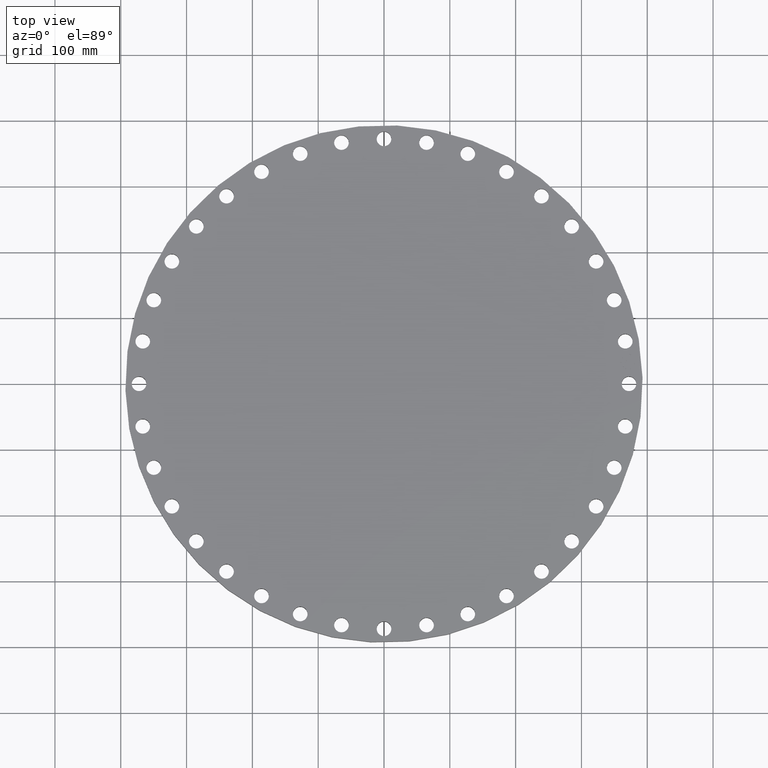
[diagram: clean part render]
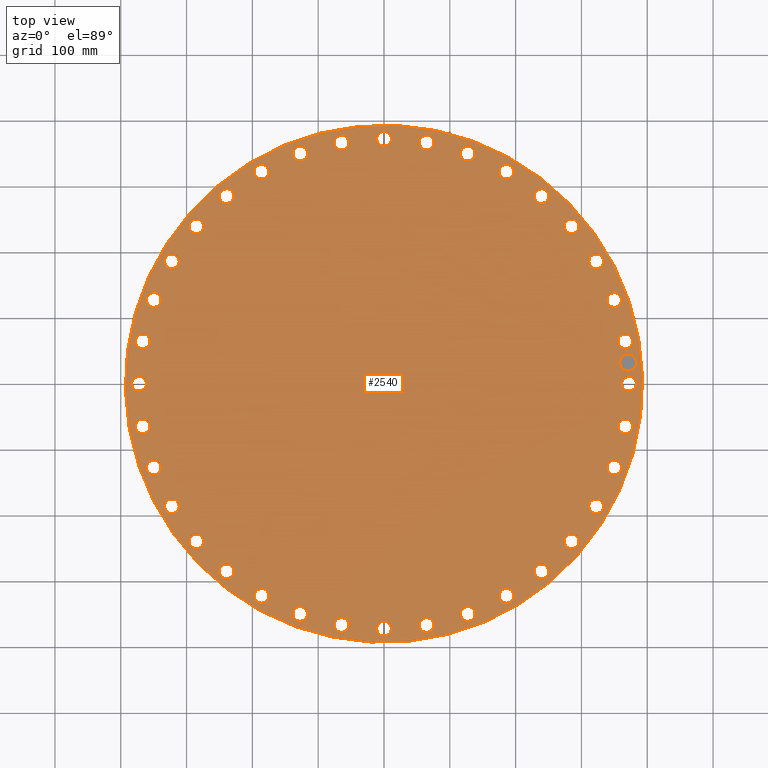
[diagram: same view with one face highlighted and labeled with its STEP entity id]
A machine part, top view. The second image highlights one B-rep face of the part: STEP entity #2540.
In plain terms, the highlighted planar face has unit normal (0, 0, -1).
Its self-contained STEP definition (entity closure, byte-faithful):
#65=AXIS2_PLACEMENT_3D('Circle Axis2P3D',#63,#64,$) ;
#82=AXIS2_PLACEMENT_3D('Circle Axis2P3D',#80,#81,$) ;
#115=AXIS2_PLACEMENT_3D('Circle Axis2P3D',#113,#114,$) ;
#139=AXIS2_PLACEMENT_3D('Circle Axis2P3D',#137,#138,$) ;
#885=AXIS2_PLACEMENT_3D('Circle Axis2P3D',#883,#884,$) ;
#897=AXIS2_PLACEMENT_3D('Circle Axis2P3D',#895,#896,$) ;
#928=AXIS2_PLACEMENT_3D('Circle Axis2P3D',#926,#927,$) ;
#940=AXIS2_PLACEMENT_3D('Circle Axis2P3D',#938,#939,$) ;
#971=AXIS2_PLACEMENT_3D('Circle Axis2P3D',#969,#970,$) ;
#983=AXIS2_PLACEMENT_3D('Circle Axis2P3D',#981,#982,$) ;
#1014=AXIS2_PLACEMENT_3D('Circle Axis2P3D',#1012,#1013,$) ;
#1026=AXIS2_PLACEMENT_3D('Circle Axis2P3D',#1024,#1025,$) ;
#1057=AXIS2_PLACEMENT_3D('Circle Axis2P3D',#1055,#1056,$) ;
#1069=AXIS2_PLACEMENT_3D('Circle Axis2P3D',#1067,#1068,$) ;
#1100=AXIS2_PLACEMENT_3D('Circle Axis2P3D',#1098,#1099,$) ;
#1112=AXIS2_PLACEMENT_3D('Circle Axis2P3D',#1110,#1111,$) ;
#1143=AXIS2_PLACEMENT_3D('Circle Axis2P3D',#1141,#1142,$) ;
#1155=AXIS2_PLACEMENT_3D('Circle Axis2P3D',#1153,#1154,$) ;
#1186=AXIS2_PLACEMENT_3D('Circle Axis2P3D',#1184,#1185,$) ;
#1198=AXIS2_PLACEMENT_3D('Circle Axis2P3D',#1196,#1197,$) ;
#1229=AXIS2_PLACEMENT_3D('Circle Axis2P3D',#1227,#1228,$) ;
#1241=AXIS2_PLACEMENT_3D('Circle Axis2P3D',#1239,#1240,$) ;
#1272=AXIS2_PLACEMENT_3D('Circle Axis2P3D',#1270,#1271,$) ;
#1284=AXIS2_PLACEMENT_3D('Circle Axis2P3D',#1282,#1283,$) ;
#1315=AXIS2_PLACEMENT_3D('Circle Axis2P3D',#1313,#1314,$) ;
#1327=AXIS2_PLACEMENT_3D('Circle Axis2P3D',#1325,#1326,$) ;
#1358=AXIS2_PLACEMENT_3D('Circle Axis2P3D',#1356,#1357,$) ;
#1370=AXIS2_PLACEMENT_3D('Circle Axis2P3D',#1368,#1369,$) ;
#1401=AXIS2_PLACEMENT_3D('Circle Axis2P3D',#1399,#1400,$) ;
#1413=AXIS2_PLACEMENT_3D('Circle Axis2P3D',#1411,#1412,$) ;
#1444=AXIS2_PLACEMENT_3D('Circle Axis2P3D',#1442,#1443,$) ;
#1456=AXIS2_PLACEMENT_3D('Circle Axis2P3D',#1454,#1455,$) ;
#1487=AXIS2_PLACEMENT_3D('Circle Axis2P3D',#1485,#1486,$) ;
#1499=AXIS2_PLACEMENT_3D('Circle Axis2P3D',#1497,#1498,$) ;
#1530=AXIS2_PLACEMENT_3D('Circle Axis2P3D',#1528,#1529,$) ;
#1542=AXIS2_PLACEMENT_3D('Circle Axis2P3D',#1540,#1541,$) ;
#1573=AXIS2_PLACEMENT_3D('Circle Axis2P3D',#1571,#1572,$) ;
#1585=AXIS2_PLACEMENT_3D('Circle Axis2P3D',#1583,#1584,$) ;
#1616=AXIS2_PLACEMENT_3D('Circle Axis2P3D',#1614,#1615,$) ;
#1628=AXIS2_PLACEMENT_3D('Circle Axis2P3D',#1626,#1627,$) ;
#1659=AXIS2_PLACEMENT_3D('Circle Axis2P3D',#1657,#1658,$) ;
#1671=AXIS2_PLACEMENT_3D('Circle Axis2P3D',#1669,#1670,$) ;
#1702=AXIS2_PLACEMENT_3D('Circle Axis2P3D',#1700,#1701,$) ;
#1714=AXIS2_PLACEMENT_3D('Circle Axis2P3D',#1712,#1713,$) ;
#1745=AXIS2_PLACEMENT_3D('Circle Axis2P3D',#1743,#1744,$) ;
#1757=AXIS2_PLACEMENT_3D('Circle Axis2P3D',#1755,#1756,$) ;
#1788=AXIS2_PLACEMENT_3D('Circle Axis2P3D',#1786,#1787,$) ;
#1800=AXIS2_PLACEMENT_3D('Circle Axis2P3D',#1798,#1799,$) ;
#1831=AXIS2_PLACEMENT_3D('Circle Axis2P3D',#1829,#1830,$) ;
#1843=AXIS2_PLACEMENT_3D('Circle Axis2P3D',#1841,#1842,$) ;
#1874=AXIS2_PLACEMENT_3D('Circle Axis2P3D',#1872,#1873,$) ;
#1886=AXIS2_PLACEMENT_3D('Circle Axis2P3D',#1884,#1885,$) ;
#1917=AXIS2_PLACEMENT_3D('Circle Axis2P3D',#1915,#1916,$) ;
#1929=AXIS2_PLACEMENT_3D('Circle Axis2P3D',#1927,#1928,$) ;
#1960=AXIS2_PLACEMENT_3D('Circle Axis2P3D',#1958,#1959,$) ;
#1972=AXIS2_PLACEMENT_3D('Circle Axis2P3D',#1970,#1971,$) ;
#2003=AXIS2_PLACEMENT_3D('Circle Axis2P3D',#2001,#2002,$) ;
#2015=AXIS2_PLACEMENT_3D('Circle Axis2P3D',#2013,#2014,$) ;
#2046=AXIS2_PLACEMENT_3D('Circle Axis2P3D',#2044,#2045,$) ;
#2058=AXIS2_PLACEMENT_3D('Circle Axis2P3D',#2056,#2057,$) ;
#2089=AXIS2_PLACEMENT_3D('Circle Axis2P3D',#2087,#2088,$) ;
#2101=AXIS2_PLACEMENT_3D('Circle Axis2P3D',#2099,#2100,$) ;
#2132=AXIS2_PLACEMENT_3D('Circle Axis2P3D',#2130,#2131,$) ;
#2144=AXIS2_PLACEMENT_3D('Circle Axis2P3D',#2142,#2143,$) ;
#2175=AXIS2_PLACEMENT_3D('Circle Axis2P3D',#2173,#2174,$) ;
#2187=AXIS2_PLACEMENT_3D('Circle Axis2P3D',#2185,#2186,$) ;
#2218=AXIS2_PLACEMENT_3D('Circle Axis2P3D',#2216,#2217,$) ;
#2230=AXIS2_PLACEMENT_3D('Circle Axis2P3D',#2228,#2229,$) ;
#2261=AXIS2_PLACEMENT_3D('Circle Axis2P3D',#2259,#2260,$) ;
#2273=AXIS2_PLACEMENT_3D('Circle Axis2P3D',#2271,#2272,$) ;
#2304=AXIS2_PLACEMENT_3D('Circle Axis2P3D',#2302,#2303,$) ;
#2316=AXIS2_PLACEMENT_3D('Circle Axis2P3D',#2314,#2315,$) ;
#2347=AXIS2_PLACEMENT_3D('Circle Axis2P3D',#2345,#2346,$) ;
#2359=AXIS2_PLACEMENT_3D('Circle Axis2P3D',#2357,#2358,$) ;
#2372=AXIS2_PLACEMENT_3D('Plane Axis2P3D',#2369,#2370,#2371) ;
#2524=AXIS2_PLACEMENT_3D('Circle Axis2P3D',#2522,#2523,$) ;
#2533=AXIS2_PLACEMENT_3D('Circle Axis2P3D',#2531,#2532,$) ;
#46=CARTESIAN_POINT('Vertex',(14.2688636728,0.210947236987,1.69000000001)) ;
#60=CARTESIAN_POINT('Vertex',(15.0411363273,-0.210947236987,1.69000000001)) ;
#63=CARTESIAN_POINT('Axis2P3D Location',(14.6550000001,0.,1.69000000001)) ;
#80=CARTESIAN_POINT('Axis2P3D Location',(14.6550000001,0.,1.69000000001)) ;
#110=CARTESIAN_POINT('Vertex',(-7.41671308224,-13.5762022325,1.69000000001)) ;
#113=CARTESIAN_POINT('Axis2P3D Location',(0.,0.,1.69000000001)) ;
#117=CARTESIAN_POINT('Vertex',(7.41671308224,13.5762022325,1.69000000001)) ;
#137=CARTESIAN_POINT('Axis2P3D Location',(0.,0.,1.69000000001)) ;
#873=CARTESIAN_POINT('Vertex',(-14.088718175,2.2700196997,1.69000000001)) ;
#880=CARTESIAN_POINT('Vertex',(-14.7759970659,2.81960838774,1.69000000001)) ;
#883=CARTESIAN_POINT('Axis2P3D Location',(-14.4323576205,2.54481404372,1.69000000001)) ;
#895=CARTESIAN_POINT('Axis2P3D Location',(-14.4323576205,2.54481404372,1.69000000001)) ;
#916=CARTESIAN_POINT('Vertex',(13.4804941046,-4.6820132365,1.69000000001)) ;
#923=CARTESIAN_POINT('Vertex',(14.0618966108,-5.34259716441,1.69000000001)) ;
#926=CARTESIAN_POINT('Axis2P3D Location',(13.7711953577,-5.01230520046,1.69000000001)) ;
#938=CARTESIAN_POINT('Axis2P3D Location',(13.7711953577,-5.01230520046,1.69000000001)) ;
#959=CARTESIAN_POINT('Vertex',(-13.4804941046,4.6820132365,1.69000000001)) ;
#966=CARTESIAN_POINT('Vertex',(-14.0618966108,5.34259716441,1.69000000001)) ;
#969=CARTESIAN_POINT('Axis2P3D Location',(-13.7711953577,5.01230520046,1.69000000001)) ;
#981=CARTESIAN_POINT('Axis2P3D Location',(-13.7711953577,5.01230520046,1.69000000001)) ;
#1002=CARTESIAN_POINT('Vertex',(12.4626720423,-6.95174617032,1.69000000001)) ;
#1009=CARTESIAN_POINT('Vertex',(12.9205325427,-7.70325382973,1.69000000001)) ;
#1012=CARTESIAN_POINT('Axis2P3D Location',(12.6916022925,-7.32750000003,1.69000000001)) ;
#1024=CARTESIAN_POINT('Axis2P3D Location',(12.6916022925,-7.32750000003,1.69000000001)) ;
#1045=CARTESIAN_POINT('Vertex',(-12.4626720423,6.95174617032,1.69000000001)) ;
#1052=CARTESIAN_POINT('Vertex',(-12.9205325427,7.70325382973,1.69000000001)) ;
#1055=CARTESIAN_POINT('Axis2P3D Location',(-12.6916022925,7.32750000003,1.69000000001)) ;
#1067=CARTESIAN_POINT('Axis2P3D Location',(-12.6916022925,7.32750000003,1.69000000001)) ;
#1088=CARTESIAN_POINT('Vertex',(11.0661779964,-9.01025381451,1.69000000001)) ;
#1095=CARTESIAN_POINT('Vertex',(11.3865846315,-9.82985102547,1.69000000001)) ;
#1098=CARTESIAN_POINT('Axis2P3D Location',(11.226381314,-9.42005241999,1.69000000001)) ;
#1110=CARTESIAN_POINT('Axis2P3D Location',(11.226381314,-9.42005241999,1.69000000001)) ;
#1131=CARTESIAN_POINT('Vertex',(-11.0661779964,9.01025381451,1.69000000001)) ;
#1138=CARTESIAN_POINT('Vertex',(-11.3865846315,9.82985102547,1.69000000001)) ;
#1141=CARTESIAN_POINT('Axis2P3D Location',(-11.226381314,9.42005241999,1.69000000001)) ;
#1153=CARTESIAN_POINT('Axis2P3D Location',(-11.226381314,9.42005241999,1.69000000001)) ;
#1174=CARTESIAN_POINT('Vertex',(9.33344373188,-10.794989456,1.69000000001)) ;
#1181=CARTESIAN_POINT('Vertex',(9.5066611081,-11.6577731719,1.69000000001)) ;
#1184=CARTESIAN_POINT('Axis2P3D Location',(9.42005241999,-11.226381314,1.69000000001)) ;
#1196=CARTESIAN_POINT('Axis2P3D Location',(9.42005241999,-11.226381314,1.69000000001)) ;
#1217=CARTESIAN_POINT('Vertex',(-9.33344373188,10.794989456,1.69000000001)) ;
#1224=CARTESIAN_POINT('Vertex',(-9.5066611081,11.6577731719,1.69000000001)) ;
#1227=CARTESIAN_POINT('Axis2P3D Location',(-9.42005241999,11.226381314,1.69000000001)) ;
#1239=CARTESIAN_POINT('Axis2P3D Location',(-9.42005241999,11.226381314,1.69000000001)) ;
#1260=CARTESIAN_POINT('Vertex',(7.3171175025,-12.2517248053,1.69000000001)) ;
#1267=CARTESIAN_POINT('Vertex',(7.33788249756,-13.1314797797,1.69000000001)) ;
#1270=CARTESIAN_POINT('Axis2P3D Location',(7.32750000003,-12.6916022925,1.69000000001)) ;
#1282=CARTESIAN_POINT('Axis2P3D Location',(7.32750000003,-12.6916022925,1.69000000001)) ;
#1303=CARTESIAN_POINT('Vertex',(-7.3171175025,12.2517248053,1.69000000001)) ;
#1310=CARTESIAN_POINT('Vertex',(-7.33788249756,13.1314797797,1.69000000001)) ;
#1313=CARTESIAN_POINT('Axis2P3D Location',(-7.32750000003,12.6916022925,1.69000000001)) ;
#1325=CARTESIAN_POINT('Axis2P3D Location',(-7.32750000003,12.6916022925,1.69000000001)) ;
#1346=CARTESIAN_POINT('Vertex',(5.07846436045,-13.3361976961,1.69000000001)) ;
#1353=CARTESIAN_POINT('Vertex',(4.94614604047,-14.2061930192,1.69000000001)) ;
#1356=CARTESIAN_POINT('Axis2P3D Location',(5.01230520046,-13.7711953577,1.69000000001)) ;
#1368=CARTESIAN_POINT('Axis2P3D Location',(5.01230520046,-13.7711953577,1.69000000001)) ;
#1389=CARTESIAN_POINT('Vertex',(-5.07846436045,13.3361976961,1.69000000001)) ;
#1396=CARTESIAN_POINT('Vertex',(-4.94614604047,14.2061930192,1.69000000001)) ;
#1399=CARTESIAN_POINT('Axis2P3D Location',(-5.01230520046,13.7711953577,1.69000000001)) ;
#1411=CARTESIAN_POINT('Axis2P3D Location',(-5.01230520046,13.7711953577,1.69000000001)) ;
#1432=CARTESIAN_POINT('Vertex',(2.68550464862,-14.0154569684,1.69000000001)) ;
#1439=CARTESIAN_POINT('Vertex',(2.40412343881,-14.8492582725,1.69000000001)) ;
#1442=CARTESIAN_POINT('Axis2P3D Location',(2.54481404372,-14.4323576205,1.69000000001)) ;
#1454=CARTESIAN_POINT('Axis2P3D Location',(2.54481404372,-14.4323576205,1.69000000001)) ;
#1475=CARTESIAN_POINT('Vertex',(-2.68550464862,14.0154569684,1.69000000001)) ;
#1482=CARTESIAN_POINT('Vertex',(-2.40412343881,14.8492582725,1.69000000001)) ;
#1485=CARTESIAN_POINT('Axis2P3D Location',(-2.54481404372,14.4323576205,1.69000000001)) ;
#1497=CARTESIAN_POINT('Axis2P3D Location',(-2.54481404372,14.4323576205,1.69000000001)) ;
#1518=CARTESIAN_POINT('Vertex',(0.210947236987,-14.2688636728,1.69000000001)) ;
#1525=CARTESIAN_POINT('Vertex',(-0.210947236987,-15.0411363273,1.69000000001)) ;
#1528=CARTESIAN_POINT('Axis2P3D Location',(-1.34056993433E-015,-14.6550000001,1.69000000001)) ;
#1540=CARTESIAN_POINT('Axis2P3D Location',(-1.34056993433E-015,-14.6550000001,1.69000000001)) ;
#1561=CARTESIAN_POINT('Vertex',(-0.210947236987,14.2688636728,1.69000000001)) ;
#1568=CARTESIAN_POINT('Vertex',(0.210947236987,15.0411363273,1.69000000001)) ;
#1571=CARTESIAN_POINT('Axis2P3D Location',(-2.69207982624E-015,14.6550000001,1.69000000001)) ;
#1583=CARTESIAN_POINT('Axis2P3D Location',(-2.69207982624E-015,14.6550000001,1.69000000001)) ;
#1604=CARTESIAN_POINT('Vertex',(-2.2700196997,-14.088718175,1.69000000001)) ;
#1611=CARTESIAN_POINT('Vertex',(-2.81960838774,-14.7759970659,1.69000000001)) ;
#1614=CARTESIAN_POINT('Axis2P3D Location',(-2.54481404372,-14.4323576205,1.69000000001)) ;
#1626=CARTESIAN_POINT('Axis2P3D Location',(-2.54481404372,-14.4323576205,1.69000000001)) ;
#1647=CARTESIAN_POINT('Vertex',(2.2700196997,14.088718175,1.69000000001)) ;
#1654=CARTESIAN_POINT('Vertex',(2.81960838774,14.7759970659,1.69000000001)) ;
#1657=CARTESIAN_POINT('Axis2P3D Location',(2.54481404372,14.4323576205,1.69000000001)) ;
#1669=CARTESIAN_POINT('Axis2P3D Location',(2.54481404372,14.4323576205,1.69000000001)) ;
#1690=CARTESIAN_POINT('Vertex',(-4.6820132365,-13.4804941046,1.69000000001)) ;
#1697=CARTESIAN_POINT('Vertex',(-5.34259716441,-14.0618966108,1.69000000001)) ;
#1700=CARTESIAN_POINT('Axis2P3D Location',(-5.01230520046,-13.7711953577,1.69000000001)) ;
#1712=CARTESIAN_POINT('Axis2P3D Location',(-5.01230520046,-13.7711953577,1.69000000001)) ;
#1733=CARTESIAN_POINT('Vertex',(4.6820132365,13.4804941046,1.69000000001)) ;
#1740=CARTESIAN_POINT('Vertex',(5.34259716441,14.0618966108,1.69000000001)) ;
#1743=CARTESIAN_POINT('Axis2P3D Location',(5.01230520046,13.7711953577,1.69000000001)) ;
#1755=CARTESIAN_POINT('Axis2P3D Location',(5.01230520046,13.7711953577,1.69000000001)) ;
#1776=CARTESIAN_POINT('Vertex',(-6.95174617032,-12.4626720423,1.69000000001)) ;
#1783=CARTESIAN_POINT('Vertex',(-7.70325382973,-12.9205325427,1.69000000001)) ;
#1786=CARTESIAN_POINT('Axis2P3D Location',(-7.32750000003,-12.6916022925,1.69000000001)) ;
#1798=CARTESIAN_POINT('Axis2P3D Location',(-7.32750000003,-12.6916022925,1.69000000001)) ;
#1819=CARTESIAN_POINT('Vertex',(6.95174617032,12.4626720423,1.69000000001)) ;
#1826=CARTESIAN_POINT('Vertex',(7.70325382973,12.9205325427,1.69000000001)) ;
#1829=CARTESIAN_POINT('Axis2P3D Location',(7.32750000003,12.6916022925,1.69000000001)) ;
#1841=CARTESIAN_POINT('Axis2P3D Location',(7.32750000003,12.6916022925,1.69000000001)) ;
#1862=CARTESIAN_POINT('Vertex',(-9.01025381451,-11.0661779964,1.69000000001)) ;
#1869=CARTESIAN_POINT('Vertex',(-9.82985102547,-11.3865846315,1.69000000001)) ;
#1872=CARTESIAN_POINT('Axis2P3D Location',(-9.42005241999,-11.226381314,1.69000000001)) ;
#1884=CARTESIAN_POINT('Axis2P3D Location',(-9.42005241999,-11.226381314,1.69000000001)) ;
#1905=CARTESIAN_POINT('Vertex',(9.01025381451,11.0661779964,1.69000000001)) ;
#1912=CARTESIAN_POINT('Vertex',(9.82985102547,11.3865846315,1.69000000001)) ;
#1915=CARTESIAN_POINT('Axis2P3D Location',(9.42005241999,11.226381314,1.69000000001)) ;
#1927=CARTESIAN_POINT('Axis2P3D Location',(9.42005241999,11.226381314,1.69000000001)) ;
#1948=CARTESIAN_POINT('Vertex',(-10.794989456,-9.33344373188,1.69000000001)) ;
#1955=CARTESIAN_POINT('Vertex',(-11.6577731719,-9.5066611081,1.69000000001)) ;
#1958=CARTESIAN_POINT('Axis2P3D Location',(-11.226381314,-9.42005241999,1.69000000001)) ;
#1970=CARTESIAN_POINT('Axis2P3D Location',(-11.226381314,-9.42005241999,1.69000000001)) ;
#1991=CARTESIAN_POINT('Vertex',(10.794989456,9.33344373188,1.69000000001)) ;
#1998=CARTESIAN_POINT('Vertex',(11.6577731719,9.5066611081,1.69000000001)) ;
#2001=CARTESIAN_POINT('Axis2P3D Location',(11.226381314,9.42005241999,1.69000000001)) ;
#2013=CARTESIAN_POINT('Axis2P3D Location',(11.226381314,9.42005241999,1.69000000001)) ;
#2034=CARTESIAN_POINT('Vertex',(-12.2517248053,-7.3171175025,1.69000000001)) ;
#2041=CARTESIAN_POINT('Vertex',(-13.1314797797,-7.33788249756,1.69000000001)) ;
#2044=CARTESIAN_POINT('Axis2P3D Location',(-12.6916022925,-7.32750000003,1.69000000001)) ;
#2056=CARTESIAN_POINT('Axis2P3D Location',(-12.6916022925,-7.32750000003,1.69000000001)) ;
#2077=CARTESIAN_POINT('Vertex',(12.2517248053,7.3171175025,1.69000000001)) ;
#2084=CARTESIAN_POINT('Vertex',(13.1314797797,7.33788249756,1.69000000001)) ;
#2087=CARTESIAN_POINT('Axis2P3D Location',(12.6916022925,7.32750000003,1.69000000001)) ;
#2099=CARTESIAN_POINT('Axis2P3D Location',(12.6916022925,7.32750000003,1.69000000001)) ;
#2120=CARTESIAN_POINT('Vertex',(-13.3361976961,-5.07846436045,1.69000000001)) ;
#2127=CARTESIAN_POINT('Vertex',(-14.2061930192,-4.94614604047,1.69000000001)) ;
#2130=CARTESIAN_POINT('Axis2P3D Location',(-13.7711953577,-5.01230520046,1.69000000001)) ;
#2142=CARTESIAN_POINT('Axis2P3D Location',(-13.7711953577,-5.01230520046,1.69000000001)) ;
#2163=CARTESIAN_POINT('Vertex',(13.3361976961,5.07846436045,1.69000000001)) ;
#2170=CARTESIAN_POINT('Vertex',(14.2061930192,4.94614604047,1.69000000001)) ;
#2173=CARTESIAN_POINT('Axis2P3D Location',(13.7711953577,5.01230520046,1.69000000001)) ;
#2185=CARTESIAN_POINT('Axis2P3D Location',(13.7711953577,5.01230520046,1.69000000001)) ;
#2206=CARTESIAN_POINT('Vertex',(-14.0154569684,-2.68550464862,1.69000000001)) ;
#2213=CARTESIAN_POINT('Vertex',(-14.8492582725,-2.40412343881,1.69000000001)) ;
#2216=CARTESIAN_POINT('Axis2P3D Location',(-14.4323576205,-2.54481404372,1.69000000001)) ;
#2228=CARTESIAN_POINT('Axis2P3D Location',(-14.4323576205,-2.54481404372,1.69000000001)) ;
#2249=CARTESIAN_POINT('Vertex',(14.0154569684,2.68550464862,1.69000000001)) ;
#2256=CARTESIAN_POINT('Vertex',(14.8492582725,2.40412343881,1.69000000001)) ;
#2259=CARTESIAN_POINT('Axis2P3D Location',(14.4323576205,2.54481404372,1.69000000001)) ;
#2271=CARTESIAN_POINT('Axis2P3D Location',(14.4323576205,2.54481404372,1.69000000001)) ;
#2292=CARTESIAN_POINT('Vertex',(-14.2688636728,-0.210947236987,1.69000000001)) ;
#2299=CARTESIAN_POINT('Vertex',(-15.0411363273,0.210947236987,1.69000000001)) ;
#2302=CARTESIAN_POINT('Axis2P3D Location',(-14.6550000001,-1.79471988416E-015,1.69000000001)) ;
#2314=CARTESIAN_POINT('Axis2P3D Location',(-14.6550000001,-1.79471988416E-015,1.69000000001)) ;
#2335=CARTESIAN_POINT('Vertex',(14.088718175,-2.2700196997,1.69000000001)) ;
#2342=CARTESIAN_POINT('Vertex',(14.7759970659,-2.81960838774,1.69000000001)) ;
#2345=CARTESIAN_POINT('Axis2P3D Location',(14.4323576205,-2.54481404372,1.69000000001)) ;
#2357=CARTESIAN_POINT('Axis2P3D Location',(14.4323576205,-2.54481404372,1.69000000001)) ;
#2369=CARTESIAN_POINT('Axis2P3D Location',(0.,15.4700000001,1.69000000001)) ;
#2522=CARTESIAN_POINT('Axis2P3D Location',(14.5992333006,1.27726740997,1.69000000001)) ;
#2526=CARTESIAN_POINT('Vertex',(14.5556554292,1.77536475902,1.69000000001)) ;
#2528=CARTESIAN_POINT('Vertex',(14.642811172,0.779170060924,1.69000000001)) ;
#2531=CARTESIAN_POINT('Axis2P3D Location',(14.5992333006,1.27726740997,1.69000000001)) ;
#64=DIRECTION('Axis2P3D Direction',(0.,-0.,-0.0393700787402)) ;
#81=DIRECTION('Axis2P3D Direction',(0.,-0.,-0.0393700787402)) ;
#114=DIRECTION('Axis2P3D Direction',(0.,0.,-0.0393700787402)) ;
#138=DIRECTION('Axis2P3D Direction',(0.,0.,-0.0393700787402)) ;
#884=DIRECTION('Axis2P3D Direction',(0.,0.,-0.0393700787402)) ;
#896=DIRECTION('Axis2P3D Direction',(0.,0.,-0.0393700787402)) ;
#927=DIRECTION('Axis2P3D Direction',(0.,-0.,-0.0393700787402)) ;
#939=DIRECTION('Axis2P3D Direction',(0.,-0.,-0.0393700787402)) ;
#970=DIRECTION('Axis2P3D Direction',(0.,0.,-0.0393700787402)) ;
#982=DIRECTION('Axis2P3D Direction',(0.,0.,-0.0393700787402)) ;
#1013=DIRECTION('Axis2P3D Direction',(0.,-0.,-0.0393700787402)) ;
#1025=DIRECTION('Axis2P3D Direction',(0.,-0.,-0.0393700787402)) ;
#1056=DIRECTION('Axis2P3D Direction',(0.,0.,-0.0393700787402)) ;
#1068=DIRECTION('Axis2P3D Direction',(0.,0.,-0.0393700787402)) ;
#1099=DIRECTION('Axis2P3D Direction',(0.,-0.,-0.0393700787402)) ;
#1111=DIRECTION('Axis2P3D Direction',(0.,-0.,-0.0393700787402)) ;
#1142=DIRECTION('Axis2P3D Direction',(0.,0.,-0.0393700787402)) ;
#1154=DIRECTION('Axis2P3D Direction',(0.,0.,-0.0393700787402)) ;
#1185=DIRECTION('Axis2P3D Direction',(0.,-0.,-0.0393700787402)) ;
#1197=DIRECTION('Axis2P3D Direction',(0.,-0.,-0.0393700787402)) ;
#1228=DIRECTION('Axis2P3D Direction',(0.,0.,-0.0393700787402)) ;
#1240=DIRECTION('Axis2P3D Direction',(0.,0.,-0.0393700787402)) ;
#1271=DIRECTION('Axis2P3D Direction',(0.,-0.,-0.0393700787402)) ;
#1283=DIRECTION('Axis2P3D Direction',(0.,-0.,-0.0393700787402)) ;
#1314=DIRECTION('Axis2P3D Direction',(0.,0.,-0.0393700787402)) ;
#1326=DIRECTION('Axis2P3D Direction',(0.,0.,-0.0393700787402)) ;
#1357=DIRECTION('Axis2P3D Direction',(0.,-0.,-0.0393700787402)) ;
#1369=DIRECTION('Axis2P3D Direction',(0.,-0.,-0.0393700787402)) ;
#1400=DIRECTION('Axis2P3D Direction',(0.,0.,-0.0393700787402)) ;
#1412=DIRECTION('Axis2P3D Direction',(0.,0.,-0.0393700787402)) ;
#1443=DIRECTION('Axis2P3D Direction',(0.,-0.,-0.0393700787402)) ;
#1455=DIRECTION('Axis2P3D Direction',(0.,-0.,-0.0393700787402)) ;
#1486=DIRECTION('Axis2P3D Direction',(0.,0.,-0.0393700787402)) ;
#1498=DIRECTION('Axis2P3D Direction',(0.,0.,-0.0393700787402)) ;
#1529=DIRECTION('Axis2P3D Direction',(0.,-0.,-0.0393700787402)) ;
#1541=DIRECTION('Axis2P3D Direction',(0.,-0.,-0.0393700787402)) ;
#1572=DIRECTION('Axis2P3D Direction',(0.,0.,-0.0393700787402)) ;
#1584=DIRECTION('Axis2P3D Direction',(0.,0.,-0.0393700787402)) ;
#1615=DIRECTION('Axis2P3D Direction',(-0.,0.,-0.0393700787402)) ;
#1627=DIRECTION('Axis2P3D Direction',(-0.,0.,-0.0393700787402)) ;
#1658=DIRECTION('Axis2P3D Direction',(0.,0.,-0.0393700787402)) ;
#1670=DIRECTION('Axis2P3D Direction',(0.,0.,-0.0393700787402)) ;
#1701=DIRECTION('Axis2P3D Direction',(-0.,0.,-0.0393700787402)) ;
#1713=DIRECTION('Axis2P3D Direction',(-0.,0.,-0.0393700787402)) ;
#1744=DIRECTION('Axis2P3D Direction',(0.,0.,-0.0393700787402)) ;
#1756=DIRECTION('Axis2P3D Direction',(0.,0.,-0.0393700787402)) ;
#1787=DIRECTION('Axis2P3D Direction',(-0.,0.,-0.0393700787402)) ;
#1799=DIRECTION('Axis2P3D Direction',(-0.,0.,-0.0393700787402)) ;
#1830=DIRECTION('Axis2P3D Direction',(0.,0.,-0.0393700787402)) ;
#1842=DIRECTION('Axis2P3D Direction',(0.,0.,-0.0393700787402)) ;
#1873=DIRECTION('Axis2P3D Direction',(-0.,0.,-0.0393700787402)) ;
#1885=DIRECTION('Axis2P3D Direction',(-0.,0.,-0.0393700787402)) ;
#1916=DIRECTION('Axis2P3D Direction',(0.,0.,-0.0393700787402)) ;
#1928=DIRECTION('Axis2P3D Direction',(0.,0.,-0.0393700787402)) ;
#1959=DIRECTION('Axis2P3D Direction',(-0.,0.,-0.0393700787402)) ;
#1971=DIRECTION('Axis2P3D Direction',(-0.,0.,-0.0393700787402)) ;
#2002=DIRECTION('Axis2P3D Direction',(0.,0.,-0.0393700787402)) ;
#2014=DIRECTION('Axis2P3D Direction',(0.,0.,-0.0393700787402)) ;
#2045=DIRECTION('Axis2P3D Direction',(-0.,0.,-0.0393700787402)) ;
#2057=DIRECTION('Axis2P3D Direction',(-0.,0.,-0.0393700787402)) ;
#2088=DIRECTION('Axis2P3D Direction',(0.,0.,-0.0393700787402)) ;
#2100=DIRECTION('Axis2P3D Direction',(0.,0.,-0.0393700787402)) ;
#2131=DIRECTION('Axis2P3D Direction',(-0.,0.,-0.0393700787402)) ;
#2143=DIRECTION('Axis2P3D Direction',(-0.,0.,-0.0393700787402)) ;
#2174=DIRECTION('Axis2P3D Direction',(0.,0.,-0.0393700787402)) ;
#2186=DIRECTION('Axis2P3D Direction',(0.,0.,-0.0393700787402)) ;
#2217=DIRECTION('Axis2P3D Direction',(-0.,0.,-0.0393700787402)) ;
#2229=DIRECTION('Axis2P3D Direction',(-0.,0.,-0.0393700787402)) ;
#2260=DIRECTION('Axis2P3D Direction',(0.,0.,-0.0393700787402)) ;
#2272=DIRECTION('Axis2P3D Direction',(0.,0.,-0.0393700787402)) ;
#2303=DIRECTION('Axis2P3D Direction',(-0.,0.,-0.0393700787402)) ;
#2315=DIRECTION('Axis2P3D Direction',(-0.,0.,-0.0393700787402)) ;
#2346=DIRECTION('Axis2P3D Direction',(0.,-0.,-0.0393700787402)) ;
#2358=DIRECTION('Axis2P3D Direction',(0.,-0.,-0.0393700787402)) ;
#2370=DIRECTION('Axis2P3D Direction',(0.,0.,-0.0393700787402)) ;
#2371=DIRECTION('Axis2P3D XDirection',(0.0393700787402,0.,0.)) ;
#2523=DIRECTION('Axis2P3D Direction',(0.,0.,-0.0393700787402)) ;
#2532=DIRECTION('Axis2P3D Direction',(0.,0.,-0.0393700787402)) ;
#2375=ORIENTED_EDGE('',*,*,#141,.F.) ;
#2376=ORIENTED_EDGE('',*,*,#119,.F.) ;
#2379=ORIENTED_EDGE('',*,*,#67,.T.) ;
#2380=ORIENTED_EDGE('',*,*,#84,.T.) ;
#2383=ORIENTED_EDGE('',*,*,#2361,.T.) ;
#2384=ORIENTED_EDGE('',*,*,#2349,.T.) ;
#2387=ORIENTED_EDGE('',*,*,#942,.T.) ;
#2388=ORIENTED_EDGE('',*,*,#930,.T.) ;
#2391=ORIENTED_EDGE('',*,*,#1028,.T.) ;
#2392=ORIENTED_EDGE('',*,*,#1016,.T.) ;
#2395=ORIENTED_EDGE('',*,*,#1114,.T.) ;
#2396=ORIENTED_EDGE('',*,*,#1102,.T.) ;
#2399=ORIENTED_EDGE('',*,*,#1200,.T.) ;
#2400=ORIENTED_EDGE('',*,*,#1188,.T.) ;
#2403=ORIENTED_EDGE('',*,*,#1286,.T.) ;
#2404=ORIENTED_EDGE('',*,*,#1274,.T.) ;
#2407=ORIENTED_EDGE('',*,*,#1372,.T.) ;
#2408=ORIENTED_EDGE('',*,*,#1360,.T.) ;
#2411=ORIENTED_EDGE('',*,*,#1458,.T.) ;
#2412=ORIENTED_EDGE('',*,*,#1446,.T.) ;
#2415=ORIENTED_EDGE('',*,*,#1544,.T.) ;
#2416=ORIENTED_EDGE('',*,*,#1532,.T.) ;
#2419=ORIENTED_EDGE('',*,*,#1630,.T.) ;
#2420=ORIENTED_EDGE('',*,*,#1618,.T.) ;
#2423=ORIENTED_EDGE('',*,*,#1716,.T.) ;
#2424=ORIENTED_EDGE('',*,*,#1704,.T.) ;
#2427=ORIENTED_EDGE('',*,*,#1802,.T.) ;
#2428=ORIENTED_EDGE('',*,*,#1790,.T.) ;
#2431=ORIENTED_EDGE('',*,*,#1888,.T.) ;
#2432=ORIENTED_EDGE('',*,*,#1876,.T.) ;
#2435=ORIENTED_EDGE('',*,*,#1974,.T.) ;
#2436=ORIENTED_EDGE('',*,*,#1962,.T.) ;
#2439=ORIENTED_EDGE('',*,*,#2060,.T.) ;
#2440=ORIENTED_EDGE('',*,*,#2048,.T.) ;
#2443=ORIENTED_EDGE('',*,*,#2146,.T.) ;
#2444=ORIENTED_EDGE('',*,*,#2134,.T.) ;
#2447=ORIENTED_EDGE('',*,*,#2232,.T.) ;
#2448=ORIENTED_EDGE('',*,*,#2220,.T.) ;
#2451=ORIENTED_EDGE('',*,*,#2318,.T.) ;
#2452=ORIENTED_EDGE('',*,*,#2306,.T.) ;
#2455=ORIENTED_EDGE('',*,*,#899,.T.) ;
#2456=ORIENTED_EDGE('',*,*,#887,.T.) ;
#2459=ORIENTED_EDGE('',*,*,#985,.T.) ;
#2460=ORIENTED_EDGE('',*,*,#973,.T.) ;
#2463=ORIENTED_EDGE('',*,*,#1071,.T.) ;
#2464=ORIENTED_EDGE('',*,*,#1059,.T.) ;
#2467=ORIENTED_EDGE('',*,*,#1157,.T.) ;
#2468=ORIENTED_EDGE('',*,*,#1145,.T.) ;
#2471=ORIENTED_EDGE('',*,*,#1243,.T.) ;
#2472=ORIENTED_EDGE('',*,*,#1231,.T.) ;
#2475=ORIENTED_EDGE('',*,*,#1329,.T.) ;
#2476=ORIENTED_EDGE('',*,*,#1317,.T.) ;
#2479=ORIENTED_EDGE('',*,*,#1415,.T.) ;
#2480=ORIENTED_EDGE('',*,*,#1403,.T.) ;
#2483=ORIENTED_EDGE('',*,*,#1501,.T.) ;
#2484=ORIENTED_EDGE('',*,*,#1489,.T.) ;
#2487=ORIENTED_EDGE('',*,*,#1587,.T.) ;
#2488=ORIENTED_EDGE('',*,*,#1575,.T.) ;
#2491=ORIENTED_EDGE('',*,*,#1673,.T.) ;
#2492=ORIENTED_EDGE('',*,*,#1661,.T.) ;
#2495=ORIENTED_EDGE('',*,*,#1759,.T.) ;
#2496=ORIENTED_EDGE('',*,*,#1747,.T.) ;
#2499=ORIENTED_EDGE('',*,*,#1845,.T.) ;
#2500=ORIENTED_EDGE('',*,*,#1833,.T.) ;
#2503=ORIENTED_EDGE('',*,*,#1931,.T.) ;
#2504=ORIENTED_EDGE('',*,*,#1919,.T.) ;
#2507=ORIENTED_EDGE('',*,*,#2017,.T.) ;
#2508=ORIENTED_EDGE('',*,*,#2005,.T.) ;
#2511=ORIENTED_EDGE('',*,*,#2103,.T.) ;
#2512=ORIENTED_EDGE('',*,*,#2091,.T.) ;
#2515=ORIENTED_EDGE('',*,*,#2189,.T.) ;
#2516=ORIENTED_EDGE('',*,*,#2177,.T.) ;
#2519=ORIENTED_EDGE('',*,*,#2275,.T.) ;
#2520=ORIENTED_EDGE('',*,*,#2263,.T.) ;
#2537=ORIENTED_EDGE('',*,*,#2530,.T.) ;
#2538=ORIENTED_EDGE('',*,*,#2535,.T.) ;
#2381=FACE_BOUND('',#2378,.T.) ;
#2385=FACE_BOUND('',#2382,.T.) ;
#2389=FACE_BOUND('',#2386,.T.) ;
#2393=FACE_BOUND('',#2390,.T.) ;
#2397=FACE_BOUND('',#2394,.T.) ;
#2401=FACE_BOUND('',#2398,.T.) ;
#2405=FACE_BOUND('',#2402,.T.) ;
#2409=FACE_BOUND('',#2406,.T.) ;
#2413=FACE_BOUND('',#2410,.T.) ;
#2417=FACE_BOUND('',#2414,.T.) ;
#2421=FACE_BOUND('',#2418,.T.) ;
#2425=FACE_BOUND('',#2422,.T.) ;
#2429=FACE_BOUND('',#2426,.T.) ;
#2433=FACE_BOUND('',#2430,.T.) ;
#2437=FACE_BOUND('',#2434,.T.) ;
#2441=FACE_BOUND('',#2438,.T.) ;
#2445=FACE_BOUND('',#2442,.T.) ;
#2449=FACE_BOUND('',#2446,.T.) ;
#2453=FACE_BOUND('',#2450,.T.) ;
#2457=FACE_BOUND('',#2454,.T.) ;
#2461=FACE_BOUND('',#2458,.T.) ;
#2465=FACE_BOUND('',#2462,.T.) ;
#2469=FACE_BOUND('',#2466,.T.) ;
#2473=FACE_BOUND('',#2470,.T.) ;
#2477=FACE_BOUND('',#2474,.T.) ;
#2481=FACE_BOUND('',#2478,.T.) ;
#2485=FACE_BOUND('',#2482,.T.) ;
#2489=FACE_BOUND('',#2486,.T.) ;
#2493=FACE_BOUND('',#2490,.T.) ;
#2497=FACE_BOUND('',#2494,.T.) ;
#2501=FACE_BOUND('',#2498,.T.) ;
#2505=FACE_BOUND('',#2502,.T.) ;
#2509=FACE_BOUND('',#2506,.T.) ;
#2513=FACE_BOUND('',#2510,.T.) ;
#2517=FACE_BOUND('',#2514,.T.) ;
#2521=FACE_BOUND('',#2518,.T.) ;
#2539=FACE_BOUND('',#2536,.T.) ;
#2540=ADVANCED_FACE('PartBody',(#2377,#2381,#2385,#2389,#2393,#2397,#2401,#2405,#2409,#2413,#2417,#2421,#2425,#2429,#2433,#2437,#2441,#2445,#2449,#2453,#2457,#2461,#2465,#2469,#2473,#2477,#2481,#2485,#2489,#2493,#2497,#2501,#2505,#2509,#2513,#2517,#2521,#2539),#2373,.F.) ;
#66=CIRCLE('generated circle',#65,0.440000000002) ;
#83=CIRCLE('generated circle',#82,0.440000000002) ;
#116=CIRCLE('generated circle',#115,15.4700000001) ;
#140=CIRCLE('generated circle',#139,15.4700000001) ;
#886=CIRCLE('generated circle',#885,0.440000000002) ;
#898=CIRCLE('generated circle',#897,0.440000000002) ;
#929=CIRCLE('generated circle',#928,0.440000000002) ;
#941=CIRCLE('generated circle',#940,0.440000000002) ;
#972=CIRCLE('generated circle',#971,0.440000000002) ;
#984=CIRCLE('generated circle',#983,0.440000000002) ;
#1015=CIRCLE('generated circle',#1014,0.440000000002) ;
#1027=CIRCLE('generated circle',#1026,0.440000000002) ;
#1058=CIRCLE('generated circle',#1057,0.440000000002) ;
#1070=CIRCLE('generated circle',#1069,0.440000000002) ;
#1101=CIRCLE('generated circle',#1100,0.440000000002) ;
#1113=CIRCLE('generated circle',#1112,0.440000000002) ;
#1144=CIRCLE('generated circle',#1143,0.440000000002) ;
#1156=CIRCLE('generated circle',#1155,0.440000000002) ;
#1187=CIRCLE('generated circle',#1186,0.440000000002) ;
#1199=CIRCLE('generated circle',#1198,0.440000000002) ;
#1230=CIRCLE('generated circle',#1229,0.440000000002) ;
#1242=CIRCLE('generated circle',#1241,0.440000000002) ;
#1273=CIRCLE('generated circle',#1272,0.440000000002) ;
#1285=CIRCLE('generated circle',#1284,0.440000000002) ;
#1316=CIRCLE('generated circle',#1315,0.440000000002) ;
#1328=CIRCLE('generated circle',#1327,0.440000000002) ;
#1359=CIRCLE('generated circle',#1358,0.440000000002) ;
#1371=CIRCLE('generated circle',#1370,0.440000000002) ;
#1402=CIRCLE('generated circle',#1401,0.440000000002) ;
#1414=CIRCLE('generated circle',#1413,0.440000000002) ;
#1445=CIRCLE('generated circle',#1444,0.440000000002) ;
#1457=CIRCLE('generated circle',#1456,0.440000000002) ;
#1488=CIRCLE('generated circle',#1487,0.440000000002) ;
#1500=CIRCLE('generated circle',#1499,0.440000000002) ;
#1531=CIRCLE('generated circle',#1530,0.440000000002) ;
#1543=CIRCLE('generated circle',#1542,0.440000000002) ;
#1574=CIRCLE('generated circle',#1573,0.440000000002) ;
#1586=CIRCLE('generated circle',#1585,0.440000000002) ;
#1617=CIRCLE('generated circle',#1616,0.440000000002) ;
#1629=CIRCLE('generated circle',#1628,0.440000000002) ;
#1660=CIRCLE('generated circle',#1659,0.440000000002) ;
#1672=CIRCLE('generated circle',#1671,0.440000000002) ;
#1703=CIRCLE('generated circle',#1702,0.440000000002) ;
#1715=CIRCLE('generated circle',#1714,0.440000000002) ;
#1746=CIRCLE('generated circle',#1745,0.440000000002) ;
#1758=CIRCLE('generated circle',#1757,0.440000000002) ;
#1789=CIRCLE('generated circle',#1788,0.440000000002) ;
#1801=CIRCLE('generated circle',#1800,0.440000000002) ;
#1832=CIRCLE('generated circle',#1831,0.440000000002) ;
#1844=CIRCLE('generated circle',#1843,0.440000000002) ;
#1875=CIRCLE('generated circle',#1874,0.440000000002) ;
#1887=CIRCLE('generated circle',#1886,0.440000000002) ;
#1918=CIRCLE('generated circle',#1917,0.440000000002) ;
#1930=CIRCLE('generated circle',#1929,0.440000000002) ;
#1961=CIRCLE('generated circle',#1960,0.440000000002) ;
#1973=CIRCLE('generated circle',#1972,0.440000000002) ;
#2004=CIRCLE('generated circle',#2003,0.440000000002) ;
#2016=CIRCLE('generated circle',#2015,0.440000000002) ;
#2047=CIRCLE('generated circle',#2046,0.440000000002) ;
#2059=CIRCLE('generated circle',#2058,0.440000000002) ;
#2090=CIRCLE('generated circle',#2089,0.440000000002) ;
#2102=CIRCLE('generated circle',#2101,0.440000000002) ;
#2133=CIRCLE('generated circle',#2132,0.440000000002) ;
#2145=CIRCLE('generated circle',#2144,0.440000000002) ;
#2176=CIRCLE('generated circle',#2175,0.440000000002) ;
#2188=CIRCLE('generated circle',#2187,0.440000000002) ;
#2219=CIRCLE('generated circle',#2218,0.440000000002) ;
#2231=CIRCLE('generated circle',#2230,0.440000000002) ;
#2262=CIRCLE('generated circle',#2261,0.440000000002) ;
#2274=CIRCLE('generated circle',#2273,0.440000000002) ;
#2305=CIRCLE('generated circle',#2304,0.440000000002) ;
#2317=CIRCLE('generated circle',#2316,0.440000000002) ;
#2348=CIRCLE('generated circle',#2347,0.440000000002) ;
#2360=CIRCLE('generated circle',#2359,0.440000000002) ;
#2525=CIRCLE('generated circle',#2524,0.500000000002) ;
#2534=CIRCLE('generated circle',#2533,0.500000000002) ;
#67=EDGE_CURVE('',#47,#61,#66,.T.) ;
#84=EDGE_CURVE('',#61,#47,#83,.T.) ;
#119=EDGE_CURVE('',#111,#118,#116,.T.) ;
#141=EDGE_CURVE('',#118,#111,#140,.T.) ;
#887=EDGE_CURVE('',#874,#881,#886,.T.) ;
#899=EDGE_CURVE('',#881,#874,#898,.T.) ;
#930=EDGE_CURVE('',#917,#924,#929,.T.) ;
#942=EDGE_CURVE('',#924,#917,#941,.T.) ;
#973=EDGE_CURVE('',#960,#967,#972,.T.) ;
#985=EDGE_CURVE('',#967,#960,#984,.T.) ;
#1016=EDGE_CURVE('',#1003,#1010,#1015,.T.) ;
#1028=EDGE_CURVE('',#1010,#1003,#1027,.T.) ;
#1059=EDGE_CURVE('',#1046,#1053,#1058,.T.) ;
#1071=EDGE_CURVE('',#1053,#1046,#1070,.T.) ;
#1102=EDGE_CURVE('',#1089,#1096,#1101,.T.) ;
#1114=EDGE_CURVE('',#1096,#1089,#1113,.T.) ;
#1145=EDGE_CURVE('',#1132,#1139,#1144,.T.) ;
#1157=EDGE_CURVE('',#1139,#1132,#1156,.T.) ;
#1188=EDGE_CURVE('',#1175,#1182,#1187,.T.) ;
#1200=EDGE_CURVE('',#1182,#1175,#1199,.T.) ;
#1231=EDGE_CURVE('',#1218,#1225,#1230,.T.) ;
#1243=EDGE_CURVE('',#1225,#1218,#1242,.T.) ;
#1274=EDGE_CURVE('',#1261,#1268,#1273,.T.) ;
#1286=EDGE_CURVE('',#1268,#1261,#1285,.T.) ;
#1317=EDGE_CURVE('',#1304,#1311,#1316,.T.) ;
#1329=EDGE_CURVE('',#1311,#1304,#1328,.T.) ;
#1360=EDGE_CURVE('',#1347,#1354,#1359,.T.) ;
#1372=EDGE_CURVE('',#1354,#1347,#1371,.T.) ;
#1403=EDGE_CURVE('',#1390,#1397,#1402,.T.) ;
#1415=EDGE_CURVE('',#1397,#1390,#1414,.T.) ;
#1446=EDGE_CURVE('',#1433,#1440,#1445,.T.) ;
#1458=EDGE_CURVE('',#1440,#1433,#1457,.T.) ;
#1489=EDGE_CURVE('',#1476,#1483,#1488,.T.) ;
#1501=EDGE_CURVE('',#1483,#1476,#1500,.T.) ;
#1532=EDGE_CURVE('',#1519,#1526,#1531,.T.) ;
#1544=EDGE_CURVE('',#1526,#1519,#1543,.T.) ;
#1575=EDGE_CURVE('',#1562,#1569,#1574,.T.) ;
#1587=EDGE_CURVE('',#1569,#1562,#1586,.T.) ;
#1618=EDGE_CURVE('',#1605,#1612,#1617,.T.) ;
#1630=EDGE_CURVE('',#1612,#1605,#1629,.T.) ;
#1661=EDGE_CURVE('',#1648,#1655,#1660,.T.) ;
#1673=EDGE_CURVE('',#1655,#1648,#1672,.T.) ;
#1704=EDGE_CURVE('',#1691,#1698,#1703,.T.) ;
#1716=EDGE_CURVE('',#1698,#1691,#1715,.T.) ;
#1747=EDGE_CURVE('',#1734,#1741,#1746,.T.) ;
#1759=EDGE_CURVE('',#1741,#1734,#1758,.T.) ;
#1790=EDGE_CURVE('',#1777,#1784,#1789,.T.) ;
#1802=EDGE_CURVE('',#1784,#1777,#1801,.T.) ;
#1833=EDGE_CURVE('',#1820,#1827,#1832,.T.) ;
#1845=EDGE_CURVE('',#1827,#1820,#1844,.T.) ;
#1876=EDGE_CURVE('',#1863,#1870,#1875,.T.) ;
#1888=EDGE_CURVE('',#1870,#1863,#1887,.T.) ;
#1919=EDGE_CURVE('',#1906,#1913,#1918,.T.) ;
#1931=EDGE_CURVE('',#1913,#1906,#1930,.T.) ;
#1962=EDGE_CURVE('',#1949,#1956,#1961,.T.) ;
#1974=EDGE_CURVE('',#1956,#1949,#1973,.T.) ;
#2005=EDGE_CURVE('',#1992,#1999,#2004,.T.) ;
#2017=EDGE_CURVE('',#1999,#1992,#2016,.T.) ;
#2048=EDGE_CURVE('',#2035,#2042,#2047,.T.) ;
#2060=EDGE_CURVE('',#2042,#2035,#2059,.T.) ;
#2091=EDGE_CURVE('',#2078,#2085,#2090,.T.) ;
#2103=EDGE_CURVE('',#2085,#2078,#2102,.T.) ;
#2134=EDGE_CURVE('',#2121,#2128,#2133,.T.) ;
#2146=EDGE_CURVE('',#2128,#2121,#2145,.T.) ;
#2177=EDGE_CURVE('',#2164,#2171,#2176,.T.) ;
#2189=EDGE_CURVE('',#2171,#2164,#2188,.T.) ;
#2220=EDGE_CURVE('',#2207,#2214,#2219,.T.) ;
#2232=EDGE_CURVE('',#2214,#2207,#2231,.T.) ;
#2263=EDGE_CURVE('',#2250,#2257,#2262,.T.) ;
#2275=EDGE_CURVE('',#2257,#2250,#2274,.T.) ;
#2306=EDGE_CURVE('',#2293,#2300,#2305,.T.) ;
#2318=EDGE_CURVE('',#2300,#2293,#2317,.T.) ;
#2349=EDGE_CURVE('',#2336,#2343,#2348,.T.) ;
#2361=EDGE_CURVE('',#2343,#2336,#2360,.T.) ;
#2530=EDGE_CURVE('',#2527,#2529,#2525,.T.) ;
#2535=EDGE_CURVE('',#2529,#2527,#2534,.T.) ;
#2374=EDGE_LOOP('',(#2375,#2376)) ;
#2378=EDGE_LOOP('',(#2379,#2380)) ;
#2382=EDGE_LOOP('',(#2383,#2384)) ;
#2386=EDGE_LOOP('',(#2387,#2388)) ;
#2390=EDGE_LOOP('',(#2391,#2392)) ;
#2394=EDGE_LOOP('',(#2395,#2396)) ;
#2398=EDGE_LOOP('',(#2399,#2400)) ;
#2402=EDGE_LOOP('',(#2403,#2404)) ;
#2406=EDGE_LOOP('',(#2407,#2408)) ;
#2410=EDGE_LOOP('',(#2411,#2412)) ;
#2414=EDGE_LOOP('',(#2415,#2416)) ;
#2418=EDGE_LOOP('',(#2419,#2420)) ;
#2422=EDGE_LOOP('',(#2423,#2424)) ;
#2426=EDGE_LOOP('',(#2427,#2428)) ;
#2430=EDGE_LOOP('',(#2431,#2432)) ;
#2434=EDGE_LOOP('',(#2435,#2436)) ;
#2438=EDGE_LOOP('',(#2439,#2440)) ;
#2442=EDGE_LOOP('',(#2443,#2444)) ;
#2446=EDGE_LOOP('',(#2447,#2448)) ;
#2450=EDGE_LOOP('',(#2451,#2452)) ;
#2454=EDGE_LOOP('',(#2455,#2456)) ;
#2458=EDGE_LOOP('',(#2459,#2460)) ;
#2462=EDGE_LOOP('',(#2463,#2464)) ;
#2466=EDGE_LOOP('',(#2467,#2468)) ;
#2470=EDGE_LOOP('',(#2471,#2472)) ;
#2474=EDGE_LOOP('',(#2475,#2476)) ;
#2478=EDGE_LOOP('',(#2479,#2480)) ;
#2482=EDGE_LOOP('',(#2483,#2484)) ;
#2486=EDGE_LOOP('',(#2487,#2488)) ;
#2490=EDGE_LOOP('',(#2491,#2492)) ;
#2494=EDGE_LOOP('',(#2495,#2496)) ;
#2498=EDGE_LOOP('',(#2499,#2500)) ;
#2502=EDGE_LOOP('',(#2503,#2504)) ;
#2506=EDGE_LOOP('',(#2507,#2508)) ;
#2510=EDGE_LOOP('',(#2511,#2512)) ;
#2514=EDGE_LOOP('',(#2515,#2516)) ;
#2518=EDGE_LOOP('',(#2519,#2520)) ;
#2536=EDGE_LOOP('',(#2537,#2538)) ;
#2377=FACE_OUTER_BOUND('',#2374,.T.) ;
#2373=PLANE('',#2372) ;
#47=VERTEX_POINT('',#46) ;
#61=VERTEX_POINT('',#60) ;
#111=VERTEX_POINT('',#110) ;
#118=VERTEX_POINT('',#117) ;
#874=VERTEX_POINT('',#873) ;
#881=VERTEX_POINT('',#880) ;
#917=VERTEX_POINT('',#916) ;
#924=VERTEX_POINT('',#923) ;
#960=VERTEX_POINT('',#959) ;
#967=VERTEX_POINT('',#966) ;
#1003=VERTEX_POINT('',#1002) ;
#1010=VERTEX_POINT('',#1009) ;
#1046=VERTEX_POINT('',#1045) ;
#1053=VERTEX_POINT('',#1052) ;
#1089=VERTEX_POINT('',#1088) ;
#1096=VERTEX_POINT('',#1095) ;
#1132=VERTEX_POINT('',#1131) ;
#1139=VERTEX_POINT('',#1138) ;
#1175=VERTEX_POINT('',#1174) ;
#1182=VERTEX_POINT('',#1181) ;
#1218=VERTEX_POINT('',#1217) ;
#1225=VERTEX_POINT('',#1224) ;
#1261=VERTEX_POINT('',#1260) ;
#1268=VERTEX_POINT('',#1267) ;
#1304=VERTEX_POINT('',#1303) ;
#1311=VERTEX_POINT('',#1310) ;
#1347=VERTEX_POINT('',#1346) ;
#1354=VERTEX_POINT('',#1353) ;
#1390=VERTEX_POINT('',#1389) ;
#1397=VERTEX_POINT('',#1396) ;
#1433=VERTEX_POINT('',#1432) ;
#1440=VERTEX_POINT('',#1439) ;
#1476=VERTEX_POINT('',#1475) ;
#1483=VERTEX_POINT('',#1482) ;
#1519=VERTEX_POINT('',#1518) ;
#1526=VERTEX_POINT('',#1525) ;
#1562=VERTEX_POINT('',#1561) ;
#1569=VERTEX_POINT('',#1568) ;
#1605=VERTEX_POINT('',#1604) ;
#1612=VERTEX_POINT('',#1611) ;
#1648=VERTEX_POINT('',#1647) ;
#1655=VERTEX_POINT('',#1654) ;
#1691=VERTEX_POINT('',#1690) ;
#1698=VERTEX_POINT('',#1697) ;
#1734=VERTEX_POINT('',#1733) ;
#1741=VERTEX_POINT('',#1740) ;
#1777=VERTEX_POINT('',#1776) ;
#1784=VERTEX_POINT('',#1783) ;
#1820=VERTEX_POINT('',#1819) ;
#1827=VERTEX_POINT('',#1826) ;
#1863=VERTEX_POINT('',#1862) ;
#1870=VERTEX_POINT('',#1869) ;
#1906=VERTEX_POINT('',#1905) ;
#1913=VERTEX_POINT('',#1912) ;
#1949=VERTEX_POINT('',#1948) ;
#1956=VERTEX_POINT('',#1955) ;
#1992=VERTEX_POINT('',#1991) ;
#1999=VERTEX_POINT('',#1998) ;
#2035=VERTEX_POINT('',#2034) ;
#2042=VERTEX_POINT('',#2041) ;
#2078=VERTEX_POINT('',#2077) ;
#2085=VERTEX_POINT('',#2084) ;
#2121=VERTEX_POINT('',#2120) ;
#2128=VERTEX_POINT('',#2127) ;
#2164=VERTEX_POINT('',#2163) ;
#2171=VERTEX_POINT('',#2170) ;
#2207=VERTEX_POINT('',#2206) ;
#2214=VERTEX_POINT('',#2213) ;
#2250=VERTEX_POINT('',#2249) ;
#2257=VERTEX_POINT('',#2256) ;
#2293=VERTEX_POINT('',#2292) ;
#2300=VERTEX_POINT('',#2299) ;
#2336=VERTEX_POINT('',#2335) ;
#2343=VERTEX_POINT('',#2342) ;
#2527=VERTEX_POINT('',#2526) ;
#2529=VERTEX_POINT('',#2528) ;